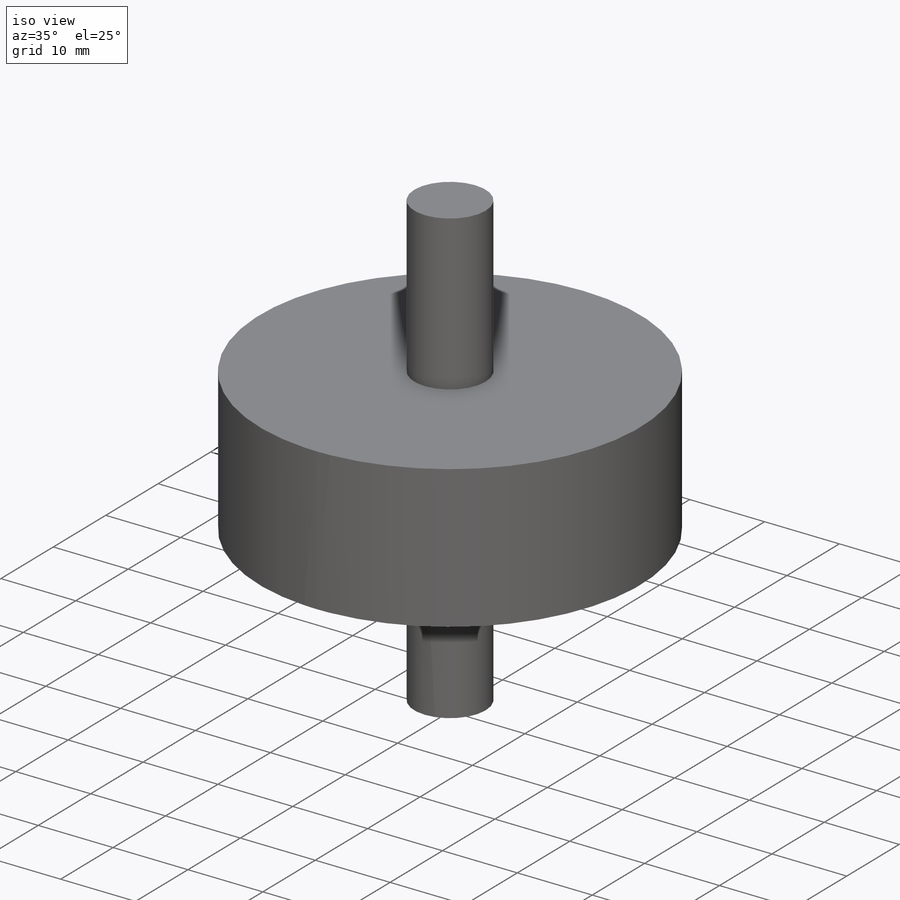
[diagram: iso view]
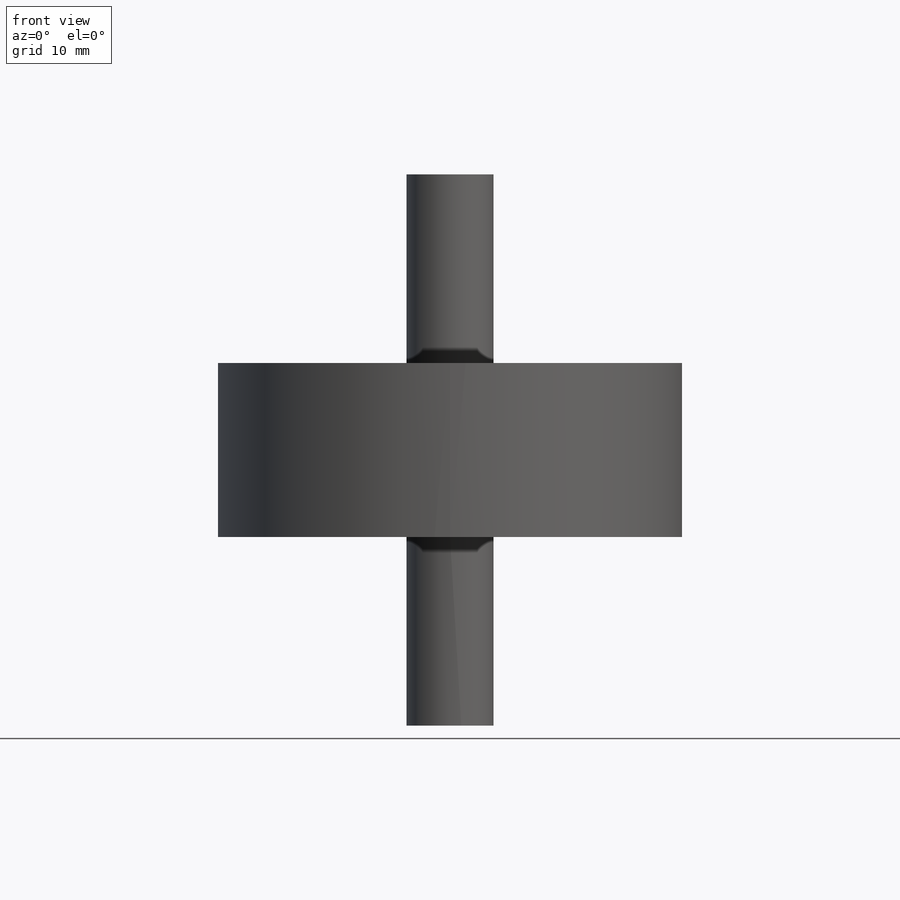
[diagram: front view]
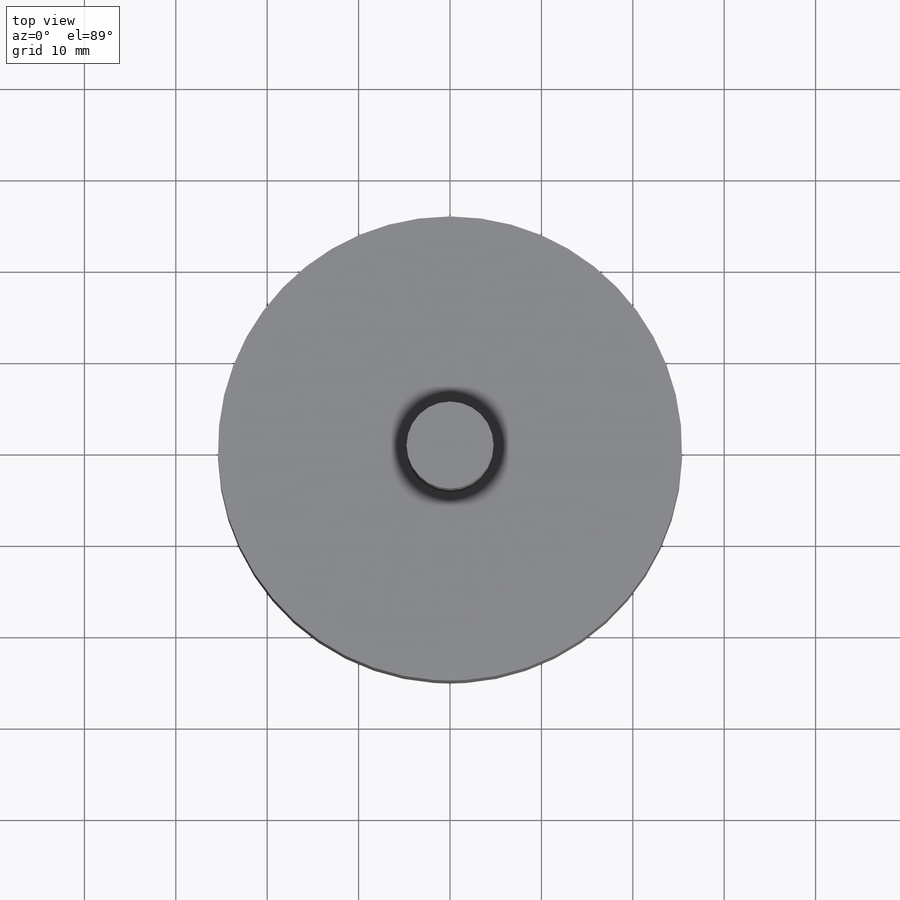
[diagram: top view]
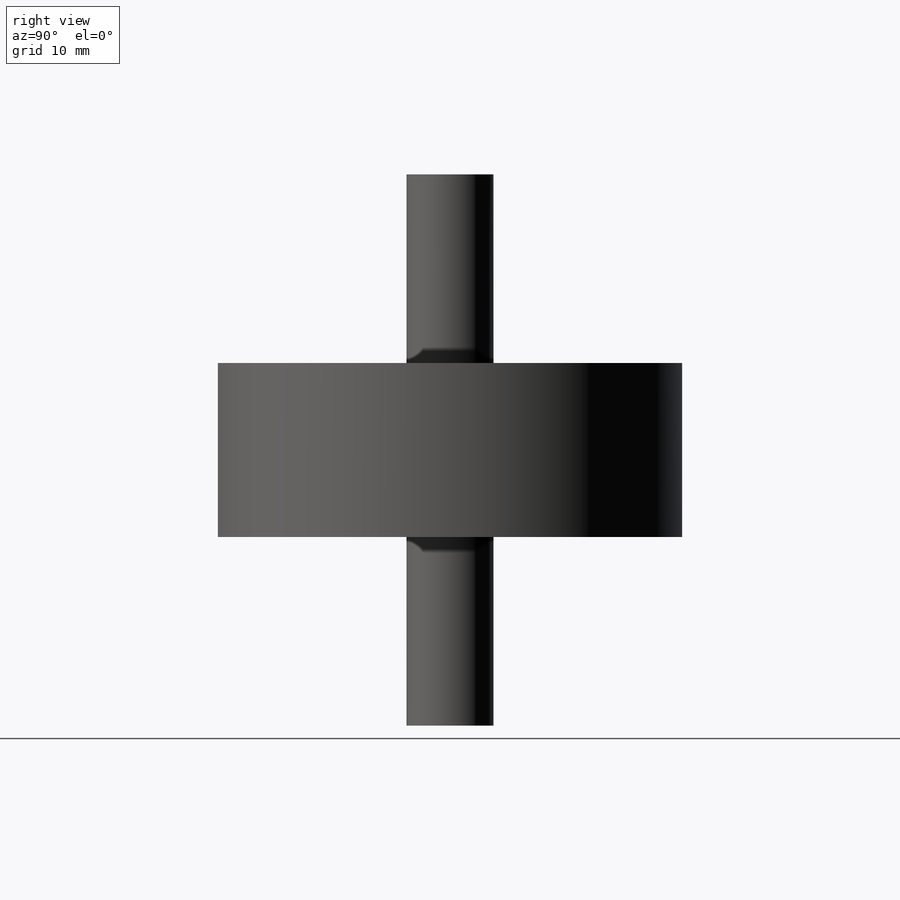
[diagram: right view]
SOLIDWORKS PART (.sldprt)
format: sldprt  version: not decoded by parser v0  size: 139,776 bytes
history: native  units: mm
features: sketch x3, extrude x2, material x1, mirror x1, cut_extrude x1 (+13 scaffold rows collapsed)
feature tree (21):
  scaffold x13  (default folders/planes/origin — collapsed)
  material  "Rubber"
  sketch  "Sketch1"  dims[D1=50.8mm]
  extrude  "Boss-Extrude1"  Depth=19.05mm
  sketch  "Sketch2"  dims[D1=9.525mm]
  extrude  "Boss-Extrude2"  Depth=20.6375mm
  mirror  "Mirror1"
  sketch  "Sketch3"  dims[D1=9.525mm]
  cut_extrude  "Cut-Extrude1"  Depth=7.9375mm
decode coverage: 6 of 7 modeling features carry decoded parameters
note: suppression state not decoded; provenance and decode notes live in map.json
